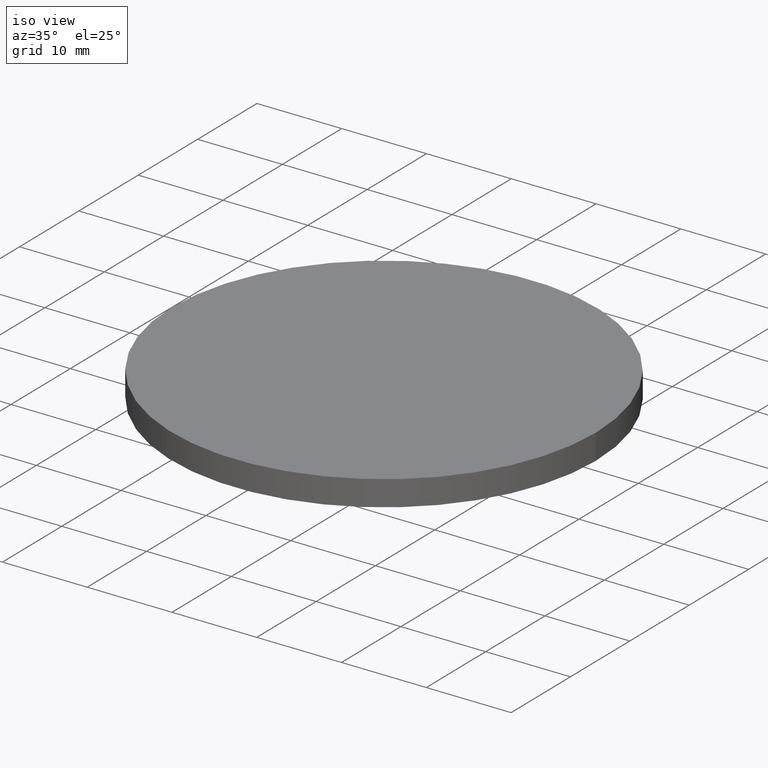
[diagram: clean part render]
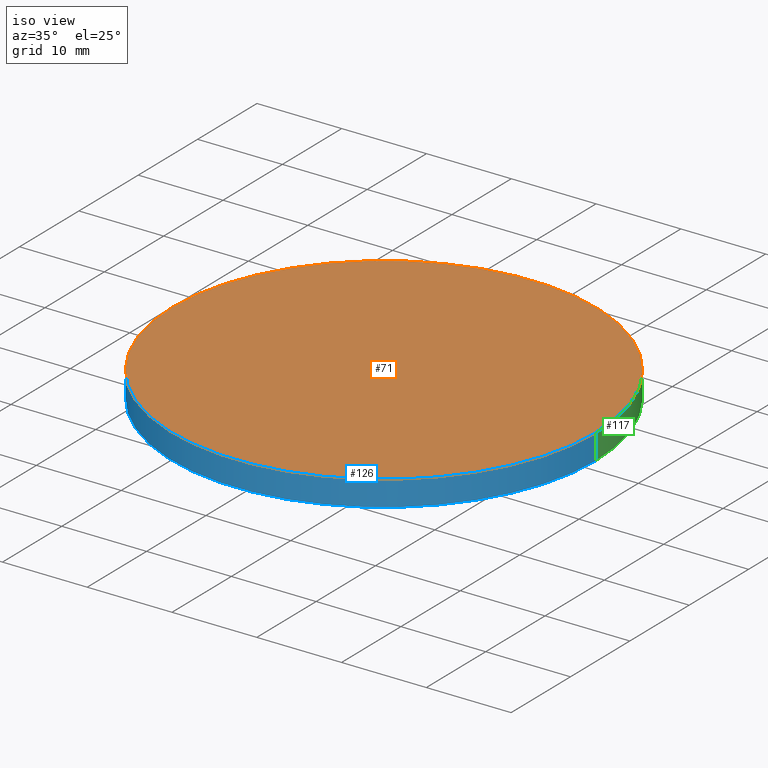
[diagram: same view with three faces highlighted in distinct colors, each labeled with its STEP entity id]
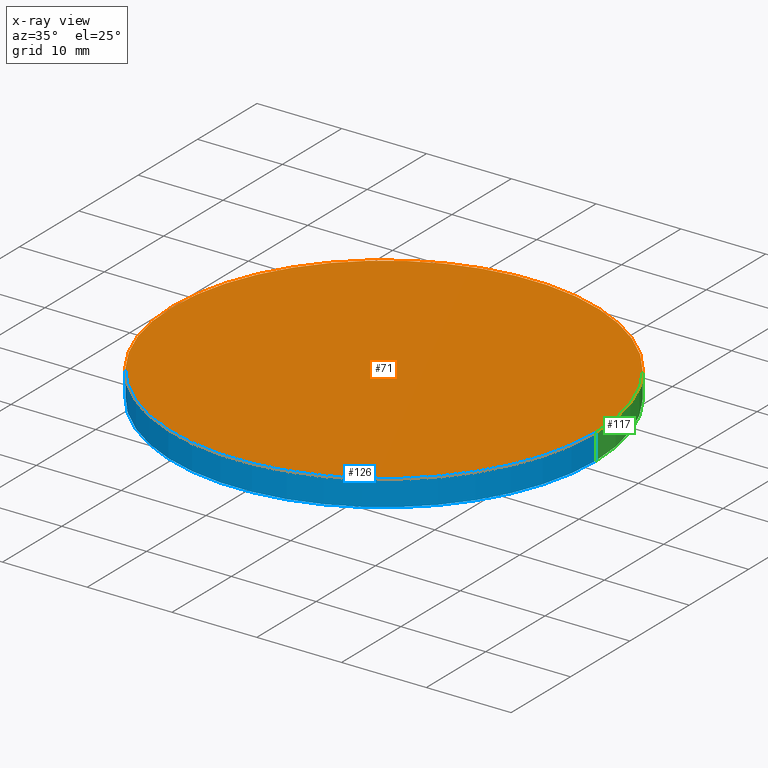
[diagram: x-ray of the same camera — body ghosted, the three highlighted faces saturated]
A machine part, iso view with three faces highlighted in distinct colors.
The next image is the same camera in x-ray (body ghosted, the three faces saturated) — at least one of them is partly hidden behind the body in this view.
Their STEP definitions:

[orange] entity #71 — the highlighted planar face has unit normal (0, 0, 1).
#6 = AXIS2_PLACEMENT_3D ( 'NONE', #41, #121, #43 ) ;
#39 = AXIS2_PLACEMENT_3D ( 'NONE', #127, #74, #108 ) ;
#41 = CARTESIAN_POINT ( 'NONE',  ( 0.0000000000000000000, 0.0000000000000000000, 3.000000000000000000 ) ) ;
#42 = CARTESIAN_POINT ( 'NONE',  ( 25.00000000000000000, 3.061616997868383000E-015, 3.000000000000000000 ) ) ;
#43 = DIRECTION ( 'NONE',  ( 1.000000000000000000, 0.0000000000000000000, -0.0000000000000000000 ) ) ;
#47 = ORIENTED_EDGE ( 'NONE', *, *, #119, .T. ) ;
#53 = EDGE_LOOP ( 'NONE', ( #59, #47 ) ) ;
#59 = ORIENTED_EDGE ( 'NONE', *, *, #106, .T. ) ;
#61 = CARTESIAN_POINT ( 'NONE',  ( 0.0000000000000000000, 0.0000000000000000000, 3.000000000000000000 ) ) ;
#65 = DIRECTION ( 'NONE',  ( 1.000000000000000000, 0.0000000000000000000, 0.0000000000000000000 ) ) ;
#71 = ADVANCED_FACE ( 'NONE', ( #131 ), #93, .T. ) ;
#74 = DIRECTION ( 'NONE',  ( 0.0000000000000000000, 0.0000000000000000000, 1.000000000000000000 ) ) ;
#79 = CIRCLE ( 'NONE', #39, 25.00000000000000000 ) ;
#93 = PLANE ( 'NONE',  #6 ) ;
#97 = VERTEX_POINT ( 'NONE', #42 ) ;
#98 = VERTEX_POINT ( 'NONE', #110 ) ;
#106 = EDGE_CURVE ( 'NONE', #98, #97, #122, .T. ) ;
#108 = DIRECTION ( 'NONE',  ( 1.000000000000000000, 0.0000000000000000000, 0.0000000000000000000 ) ) ;
#110 = CARTESIAN_POINT ( 'NONE',  ( -25.00000000000000000, 0.0000000000000000000, 3.000000000000000000 ) ) ;
#114 = DIRECTION ( 'NONE',  ( 0.0000000000000000000, 0.0000000000000000000, 1.000000000000000000 ) ) ;
#119 = EDGE_CURVE ( 'NONE', #97, #98, #79, .T. ) ;
#121 = DIRECTION ( 'NONE',  ( 0.0000000000000000000, 0.0000000000000000000, 1.000000000000000000 ) ) ;
#122 = CIRCLE ( 'NONE', #129, 25.00000000000000000 ) ;
#127 = CARTESIAN_POINT ( 'NONE',  ( 0.0000000000000000000, 0.0000000000000000000, 3.000000000000000000 ) ) ;
#129 = AXIS2_PLACEMENT_3D ( 'NONE', #61, #114, #65 ) ;
#131 = FACE_OUTER_BOUND ( 'NONE', #53, .T. ) ;

[blue] entity #126 — the highlighted cylindrical surface (partial cylindrical patch) has radius 25 mm, axis along (-0, -0, -1).
#4 = DIRECTION ( 'NONE',  ( -1.000000000000000000, 0.0000000000000000000, 0.0000000000000000000 ) ) ;
#7 = CYLINDRICAL_SURFACE ( 'NONE', #128, 25.00000000000000000 ) ;
#9 = CARTESIAN_POINT ( 'NONE',  ( 0.0000000000000000000, 0.0000000000000000000, 0.0000000000000000000 ) ) ;
#13 = DIRECTION ( 'NONE',  ( -0.0000000000000000000, -0.0000000000000000000, -1.000000000000000000 ) ) ;
#23 = CARTESIAN_POINT ( 'NONE',  ( 25.00000000000000000, 3.061616997868383000E-015, 0.0000000000000000000 ) ) ;
#31 = DIRECTION ( 'NONE',  ( 1.000000000000000000, 0.0000000000000000000, 0.0000000000000000000 ) ) ;
#32 = VERTEX_POINT ( 'NONE', #36 ) ;
#33 = LINE ( 'NONE', #67, #94 ) ;
#36 = CARTESIAN_POINT ( 'NONE',  ( -25.00000000000000000, 0.0000000000000000000, 0.0000000000000000000 ) ) ;
#37 = DIRECTION ( 'NONE',  ( 0.0000000000000000000, 0.0000000000000000000, 1.000000000000000000 ) ) ;
#40 = CIRCLE ( 'NONE', #87, 25.00000000000000000 ) ;
#42 = CARTESIAN_POINT ( 'NONE',  ( 25.00000000000000000, 3.061616997868383000E-015, 3.000000000000000000 ) ) ;
#54 = EDGE_CURVE ( 'NONE', #32, #95, #40, .T. ) ;
#60 = EDGE_CURVE ( 'NONE', #97, #95, #33, .T. ) ;
#61 = CARTESIAN_POINT ( 'NONE',  ( 0.0000000000000000000, 0.0000000000000000000, 3.000000000000000000 ) ) ;
#63 = ORIENTED_EDGE ( 'NONE', *, *, #106, .F. ) ;
#65 = DIRECTION ( 'NONE',  ( 1.000000000000000000, 0.0000000000000000000, 0.0000000000000000000 ) ) ;
#66 = CARTESIAN_POINT ( 'NONE',  ( 0.0000000000000000000, 0.0000000000000000000, 3.000000000000000000 ) ) ;
#67 = CARTESIAN_POINT ( 'NONE',  ( 25.00000000000000000, 3.061616997868383000E-015, 3.000000000000000000 ) ) ;
#75 = EDGE_CURVE ( 'NONE', #98, #32, #124, .T. ) ;
#76 = EDGE_LOOP ( 'NONE', ( #92, #63, #137, #86 ) ) ;
#78 = DIRECTION ( 'NONE',  ( -0.0000000000000000000, -0.0000000000000000000, -1.000000000000000000 ) ) ;
#86 = ORIENTED_EDGE ( 'NONE', *, *, #54, .T. ) ;
#87 = AXIS2_PLACEMENT_3D ( 'NONE', #9, #37, #31 ) ;
#90 = CARTESIAN_POINT ( 'NONE',  ( -25.00000000000000000, 0.0000000000000000000, 3.000000000000000000 ) ) ;
#92 = ORIENTED_EDGE ( 'NONE', *, *, #60, .F. ) ;
#94 = VECTOR ( 'NONE', #96, 1000.000000000000000 ) ;
#95 = VERTEX_POINT ( 'NONE', #23 ) ;
#96 = DIRECTION ( 'NONE',  ( -0.0000000000000000000, -0.0000000000000000000, -1.000000000000000000 ) ) ;
#97 = VERTEX_POINT ( 'NONE', #42 ) ;
#98 = VERTEX_POINT ( 'NONE', #110 ) ;
#106 = EDGE_CURVE ( 'NONE', #98, #97, #122, .T. ) ;
#110 = CARTESIAN_POINT ( 'NONE',  ( -25.00000000000000000, 0.0000000000000000000, 3.000000000000000000 ) ) ;
#114 = DIRECTION ( 'NONE',  ( 0.0000000000000000000, 0.0000000000000000000, 1.000000000000000000 ) ) ;
#116 = FACE_OUTER_BOUND ( 'NONE', #76, .T. ) ;
#122 = CIRCLE ( 'NONE', #129, 25.00000000000000000 ) ;
#124 = LINE ( 'NONE', #90, #132 ) ;
#126 = ADVANCED_FACE ( 'NONE', ( #116 ), #7, .T. ) ;
#128 = AXIS2_PLACEMENT_3D ( 'NONE', #66, #78, #4 ) ;
#129 = AXIS2_PLACEMENT_3D ( 'NONE', #61, #114, #65 ) ;
#132 = VECTOR ( 'NONE', #13, 1000.000000000000000 ) ;
#137 = ORIENTED_EDGE ( 'NONE', *, *, #75, .T. ) ;

[green] entity #117 — the highlighted cylindrical surface (partial cylindrical patch) has radius 25 mm, axis along (-0, -0, -1).
#12 = AXIS2_PLACEMENT_3D ( 'NONE', #56, #84, #27 ) ;
#13 = DIRECTION ( 'NONE',  ( -0.0000000000000000000, -0.0000000000000000000, -1.000000000000000000 ) ) ;
#23 = CARTESIAN_POINT ( 'NONE',  ( 25.00000000000000000, 3.061616997868383000E-015, 0.0000000000000000000 ) ) ;
#27 = DIRECTION ( 'NONE',  ( 1.000000000000000000, 0.0000000000000000000, 0.0000000000000000000 ) ) ;
#28 = CYLINDRICAL_SURFACE ( 'NONE', #30, 25.00000000000000000 ) ;
#30 = AXIS2_PLACEMENT_3D ( 'NONE', #55, #101, #62 ) ;
#32 = VERTEX_POINT ( 'NONE', #36 ) ;
#33 = LINE ( 'NONE', #67, #94 ) ;
#34 = ORIENTED_EDGE ( 'NONE', *, *, #60, .T. ) ;
#35 = EDGE_CURVE ( 'NONE', #95, #32, #139, .T. ) ;
#36 = CARTESIAN_POINT ( 'NONE',  ( -25.00000000000000000, 0.0000000000000000000, 0.0000000000000000000 ) ) ;
#39 = AXIS2_PLACEMENT_3D ( 'NONE', #127, #74, #108 ) ;
#42 = CARTESIAN_POINT ( 'NONE',  ( 25.00000000000000000, 3.061616997868383000E-015, 3.000000000000000000 ) ) ;
#50 = EDGE_LOOP ( 'NONE', ( #51, #34, #81, #113 ) ) ;
#51 = ORIENTED_EDGE ( 'NONE', *, *, #119, .F. ) ;
#52 = FACE_OUTER_BOUND ( 'NONE', #50, .T. ) ;
#55 = CARTESIAN_POINT ( 'NONE',  ( 0.0000000000000000000, 0.0000000000000000000, 3.000000000000000000 ) ) ;
#56 = CARTESIAN_POINT ( 'NONE',  ( 0.0000000000000000000, 0.0000000000000000000, 0.0000000000000000000 ) ) ;
#60 = EDGE_CURVE ( 'NONE', #97, #95, #33, .T. ) ;
#62 = DIRECTION ( 'NONE',  ( -1.000000000000000000, 0.0000000000000000000, 0.0000000000000000000 ) ) ;
#67 = CARTESIAN_POINT ( 'NONE',  ( 25.00000000000000000, 3.061616997868383000E-015, 3.000000000000000000 ) ) ;
#74 = DIRECTION ( 'NONE',  ( 0.0000000000000000000, 0.0000000000000000000, 1.000000000000000000 ) ) ;
#75 = EDGE_CURVE ( 'NONE', #98, #32, #124, .T. ) ;
#79 = CIRCLE ( 'NONE', #39, 25.00000000000000000 ) ;
#81 = ORIENTED_EDGE ( 'NONE', *, *, #35, .T. ) ;
#84 = DIRECTION ( 'NONE',  ( 0.0000000000000000000, 0.0000000000000000000, 1.000000000000000000 ) ) ;
#90 = CARTESIAN_POINT ( 'NONE',  ( -25.00000000000000000, 0.0000000000000000000, 3.000000000000000000 ) ) ;
#94 = VECTOR ( 'NONE', #96, 1000.000000000000000 ) ;
#95 = VERTEX_POINT ( 'NONE', #23 ) ;
#96 = DIRECTION ( 'NONE',  ( -0.0000000000000000000, -0.0000000000000000000, -1.000000000000000000 ) ) ;
#97 = VERTEX_POINT ( 'NONE', #42 ) ;
#98 = VERTEX_POINT ( 'NONE', #110 ) ;
#101 = DIRECTION ( 'NONE',  ( -0.0000000000000000000, -0.0000000000000000000, -1.000000000000000000 ) ) ;
#108 = DIRECTION ( 'NONE',  ( 1.000000000000000000, 0.0000000000000000000, 0.0000000000000000000 ) ) ;
#110 = CARTESIAN_POINT ( 'NONE',  ( -25.00000000000000000, 0.0000000000000000000, 3.000000000000000000 ) ) ;
#113 = ORIENTED_EDGE ( 'NONE', *, *, #75, .F. ) ;
#117 = ADVANCED_FACE ( 'NONE', ( #52 ), #28, .T. ) ;
#119 = EDGE_CURVE ( 'NONE', #97, #98, #79, .T. ) ;
#124 = LINE ( 'NONE', #90, #132 ) ;
#127 = CARTESIAN_POINT ( 'NONE',  ( 0.0000000000000000000, 0.0000000000000000000, 3.000000000000000000 ) ) ;
#132 = VECTOR ( 'NONE', #13, 1000.000000000000000 ) ;
#139 = CIRCLE ( 'NONE', #12, 25.00000000000000000 ) ;